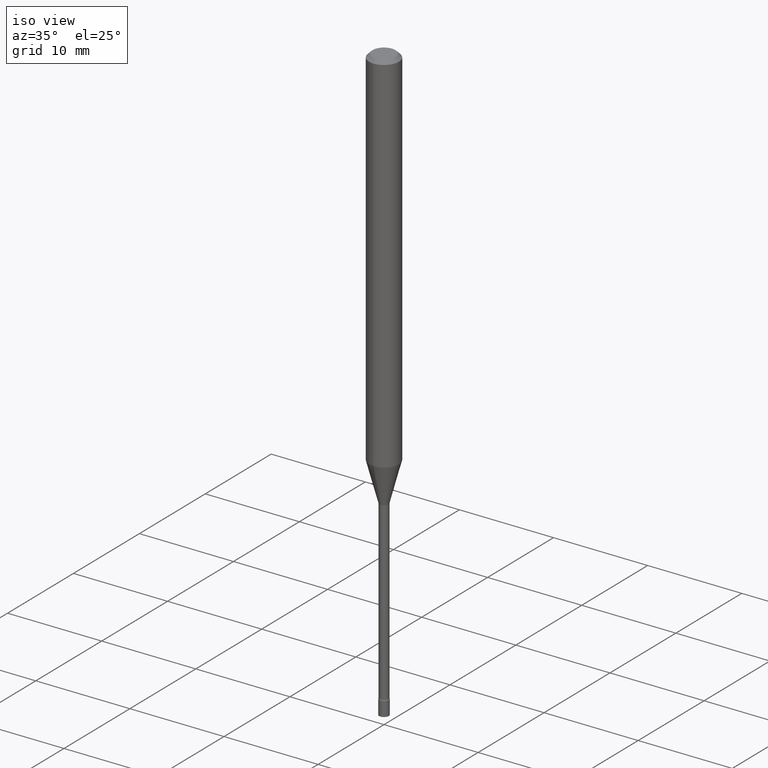
[diagram: clean part render]
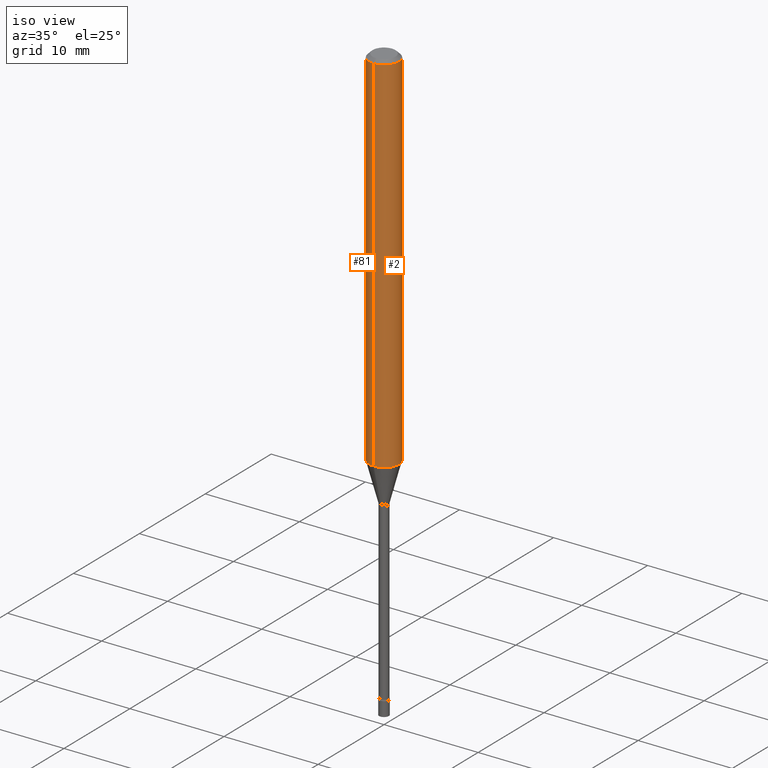
[diagram: same view with one multi-face feature highlighted, each face labeled with its STEP entity id]
A machine part, iso view. The highlighted faces form ONE feature: a constant-radius fillet chain: 2 tangent blend faces with common blend radius 1.5875 mm. The faces share edges in the B-rep.
Their STEP definitions:
[1] entity #2 (Cylinder):
#2 = ADVANCED_FACE ( 'NONE', ( #11 ), #454, .T. ) ;
#11 = FACE_OUTER_BOUND ( 'NONE', #288, .T. ) ;
#20 = CARTESIAN_POINT ( 'NONE',  ( 0.000000000000000000, 0.000000000000000000, 0.000000000000000000 ) ) ;
#49 = ORIENTED_EDGE ( 'NONE', *, *, #326, .F. ) ;
#99 = DIRECTION ( 'NONE',  ( -6.982962677686265922E-15, -1.000000000000000000, 3.483106191921935554E-15 ) ) ;
#115 = VERTEX_POINT ( 'NONE', #173 ) ;
#124 = AXIS2_PLACEMENT_3D ( 'NONE', #20, #497, #141 ) ;
#135 = LINE ( 'NONE', #140, #210 ) ;
#136 = EDGE_CURVE ( 'NONE', #190, #115, #135, .T. ) ;
#138 = CARTESIAN_POINT ( 'NONE',  ( 3.758396032934700996E-29, -5.366187674140293231E-15, -1.536909379709240131 ) ) ;
#140 = CARTESIAN_POINT ( 'NONE',  ( -4.364351673553916201E-16, -0.06250000000000000000, 2.182215386682189064E-16 ) ) ;
#141 = DIRECTION ( 'NONE',  ( -6.982962677686265922E-15, -1.000000000000000000, 3.491544618691502502E-15 ) ) ;
#144 = EDGE_CURVE ( 'NONE', #190, #315, #501, .T. ) ;
#151 = CARTESIAN_POINT ( 'NONE',  ( -4.364351673553541985E-16, -0.06250000000000538458, -1.536909379709239909 ) ) ;
#173 = CARTESIAN_POINT ( 'NONE',  ( -4.364351673553912750E-16, -0.06250000000000005551, -0.01499999999999981209 ) ) ;
#190 = VERTEX_POINT ( 'NONE', #151 ) ;
#197 = EDGE_CURVE ( 'NONE', #315, #221, #313, .T. ) ;
#210 = VECTOR ( 'NONE', #252, 39.37007874015748143 ) ;
#220 = DIRECTION ( 'NONE',  ( -2.445424618103204141E-29, 3.491544618691502502E-15, 1.000000000000000000 ) ) ;
#221 = VERTEX_POINT ( 'NONE', #425 ) ;
#235 = ORIENTED_EDGE ( 'NONE', *, *, #197, .T. ) ;
#243 = CARTESIAN_POINT ( 'NONE',  ( 3.668136927154813270E-31, -5.237316928037264353E-17, -0.01500000000000003067 ) ) ;
#252 = DIRECTION ( 'NONE',  ( -2.445424618103204141E-29, 3.491544618691502896E-15, 1.000000000000000000 ) ) ;
#288 = EDGE_LOOP ( 'NONE', ( #515, #235, #49, #395 ) ) ;
#298 = DIRECTION ( 'NONE',  ( -2.445424618103204141E-29, 3.491544618691502502E-15, 1.000000000000000000 ) ) ;
#313 = LINE ( 'NONE', #351, #427 ) ;
#315 = VERTEX_POINT ( 'NONE', #327 ) ;
#326 = EDGE_CURVE ( 'NONE', #115, #221, #469, .T. ) ;
#327 = CARTESIAN_POINT ( 'NONE',  ( 4.440892098500999885E-16, 0.06249999999999461542, -1.536909379709240575 ) ) ;
#351 = CARTESIAN_POINT ( 'NONE',  ( 4.440892098500625669E-16, 0.06250000000000000000, -2.182215386682189064E-16 ) ) ;
#363 = AXIS2_PLACEMENT_3D ( 'NONE', #243, #220, #99 ) ;
#395 = ORIENTED_EDGE ( 'NONE', *, *, #136, .F. ) ;
#414 = AXIS2_PLACEMENT_3D ( 'NONE', #138, #298, #420 ) ;
#420 = DIRECTION ( 'NONE',  ( -6.982962677686265922E-15, -1.000000000000000000, 4.370956789862821150E-15 ) ) ;
#425 = CARTESIAN_POINT ( 'NONE',  ( 4.440892098501004815E-16, 0.06249999999999995143, -0.01500000000000024751 ) ) ;
#427 = VECTOR ( 'NONE', #471, 39.37007874015748143 ) ;
#454 = CYLINDRICAL_SURFACE ( 'NONE', #124, 0.06250000000000000000 ) ;
#469 = CIRCLE ( 'NONE', #363, 0.06250000000000000000 ) ;
#471 = DIRECTION ( 'NONE',  ( -2.445424618103204141E-29, 3.491544618691502896E-15, 1.000000000000000000 ) ) ;
#497 = DIRECTION ( 'NONE',  ( -2.445424618103204141E-29, 3.491544618691502502E-15, 1.000000000000000000 ) ) ;
#501 = CIRCLE ( 'NONE', #414, 0.06250000000000000000 ) ;
#515 = ORIENTED_EDGE ( 'NONE', *, *, #144, .T. ) ;
[2] entity #81 (Cylinder):
#9 = CYLINDRICAL_SURFACE ( 'NONE', #372, 0.06250000000000000000 ) ;
#18 = CARTESIAN_POINT ( 'NONE',  ( 0.000000000000000000, 0.000000000000000000, 0.000000000000000000 ) ) ;
#73 = ORIENTED_EDGE ( 'NONE', *, *, #197, .F. ) ;
#76 = ORIENTED_EDGE ( 'NONE', *, *, #105, .T. ) ;
#78 = ORIENTED_EDGE ( 'NONE', *, *, #136, .T. ) ;
#81 = ADVANCED_FACE ( 'NONE', ( #88 ), #9, .T. ) ;
#85 = AXIS2_PLACEMENT_3D ( 'NONE', #371, #451, #377 ) ;
#88 = FACE_OUTER_BOUND ( 'NONE', #237, .T. ) ;
#94 = DIRECTION ( 'NONE',  ( -6.982962677686265922E-15, -1.000000000000000000, 3.483106191921935554E-15 ) ) ;
#98 = EDGE_CURVE ( 'NONE', #221, #115, #406, .T. ) ;
#105 = EDGE_CURVE ( 'NONE', #315, #190, #516, .T. ) ;
#115 = VERTEX_POINT ( 'NONE', #173 ) ;
#135 = LINE ( 'NONE', #140, #210 ) ;
#136 = EDGE_CURVE ( 'NONE', #190, #115, #135, .T. ) ;
#140 = CARTESIAN_POINT ( 'NONE',  ( -4.364351673553916201E-16, -0.06250000000000000000, 2.182215386682189064E-16 ) ) ;
#151 = CARTESIAN_POINT ( 'NONE',  ( -4.364351673553541985E-16, -0.06250000000000538458, -1.536909379709239909 ) ) ;
#173 = CARTESIAN_POINT ( 'NONE',  ( -4.364351673553912750E-16, -0.06250000000000005551, -0.01499999999999981209 ) ) ;
#190 = VERTEX_POINT ( 'NONE', #151 ) ;
#197 = EDGE_CURVE ( 'NONE', #315, #221, #313, .T. ) ;
#210 = VECTOR ( 'NONE', #252, 39.37007874015748143 ) ;
#221 = VERTEX_POINT ( 'NONE', #425 ) ;
#237 = EDGE_LOOP ( 'NONE', ( #73, #76, #78, #509 ) ) ;
#252 = DIRECTION ( 'NONE',  ( -2.445424618103204141E-29, 3.491544618691502896E-15, 1.000000000000000000 ) ) ;
#291 = DIRECTION ( 'NONE',  ( -2.445424618103204141E-29, 3.491544618691502502E-15, 1.000000000000000000 ) ) ;
#313 = LINE ( 'NONE', #351, #427 ) ;
#315 = VERTEX_POINT ( 'NONE', #327 ) ;
#327 = CARTESIAN_POINT ( 'NONE',  ( 4.440892098500999885E-16, 0.06249999999999461542, -1.536909379709240575 ) ) ;
#328 = AXIS2_PLACEMENT_3D ( 'NONE', #413, #424, #94 ) ;
#351 = CARTESIAN_POINT ( 'NONE',  ( 4.440892098500625669E-16, 0.06250000000000000000, -2.182215386682189064E-16 ) ) ;
#371 = CARTESIAN_POINT ( 'NONE',  ( 3.758396032934700996E-29, -5.366187674140293231E-15, -1.536909379709240131 ) ) ;
#372 = AXIS2_PLACEMENT_3D ( 'NONE', #18, #291, #448 ) ;
#377 = DIRECTION ( 'NONE',  ( -6.982962677686265922E-15, -1.000000000000000000, 4.370956789862821150E-15 ) ) ;
#406 = CIRCLE ( 'NONE', #328, 0.06250000000000000000 ) ;
#413 = CARTESIAN_POINT ( 'NONE',  ( 3.668136927154813270E-31, -5.237316928037264353E-17, -0.01500000000000003067 ) ) ;
#424 = DIRECTION ( 'NONE',  ( -2.445424618103204141E-29, 3.491544618691502502E-15, 1.000000000000000000 ) ) ;
#425 = CARTESIAN_POINT ( 'NONE',  ( 4.440892098501004815E-16, 0.06249999999999995143, -0.01500000000000024751 ) ) ;
#427 = VECTOR ( 'NONE', #471, 39.37007874015748143 ) ;
#448 = DIRECTION ( 'NONE',  ( -6.982962677686265922E-15, -1.000000000000000000, 3.491544618691502502E-15 ) ) ;
#451 = DIRECTION ( 'NONE',  ( -2.445424618103204141E-29, 3.491544618691502502E-15, 1.000000000000000000 ) ) ;
#471 = DIRECTION ( 'NONE',  ( -2.445424618103204141E-29, 3.491544618691502896E-15, 1.000000000000000000 ) ) ;
#509 = ORIENTED_EDGE ( 'NONE', *, *, #98, .F. ) ;
#516 = CIRCLE ( 'NONE', #85, 0.06250000000000000000 ) ;